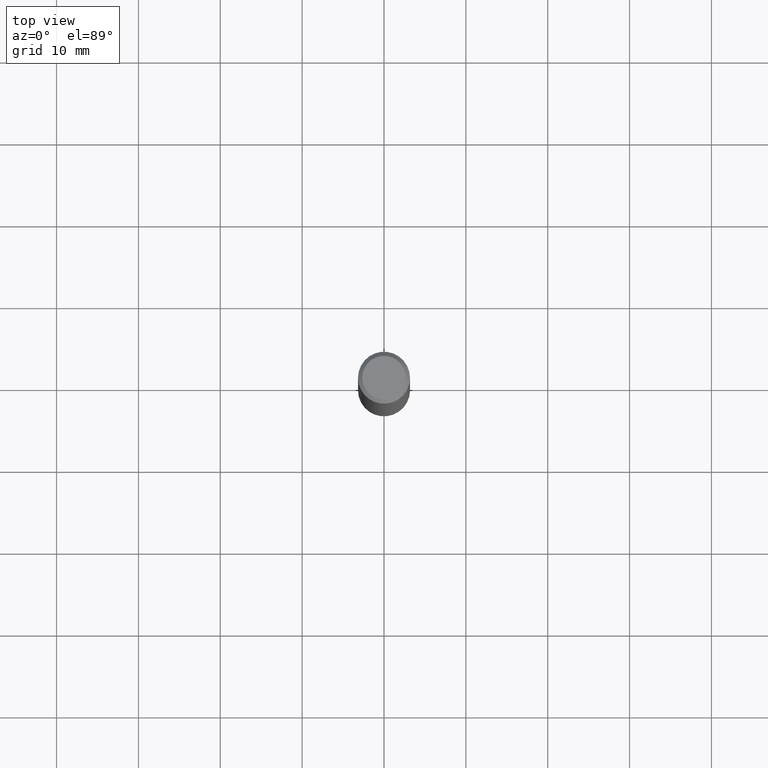
[diagram: clean part render]
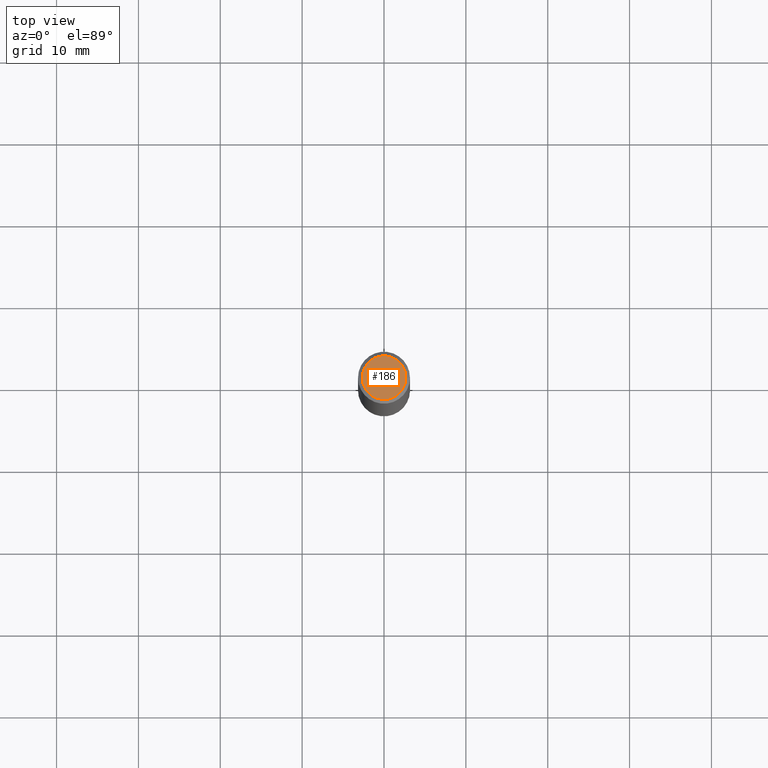
[diagram: same view with one face highlighted and labeled with its STEP entity id]
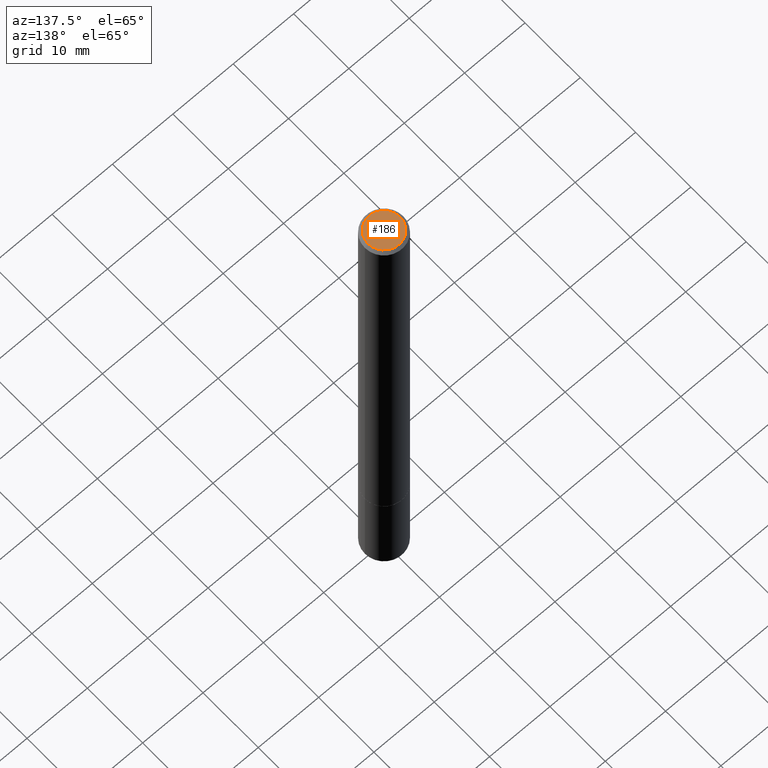
[diagram: same view with one face highlighted and labeled with its STEP entity id]
A machine part, top view. The second image highlights one B-rep face of the part: STEP entity #186.
A second angle (auxiliary view) of the same face is appended — the face is thin or edge-on in the first view.
In plain terms, the highlighted planar face has unit normal (0, -0, -1).
Its self-contained STEP definition (entity closure, byte-faithful):
#15 = EDGE_CURVE ( 'NONE', #198, #289, #214, .T. ) ;
#23 = PLANE ( 'NONE',  #83 ) ;
#74 = DIRECTION ( 'NONE',  ( 2.438088387897960049E-29, -3.491481338843145188E-15, -1.000000000000000000 ) ) ;
#83 = AXIS2_PLACEMENT_3D ( 'NONE', #101, #74, #160 ) ;
#101 = CARTESIAN_POINT ( 'NONE',  ( 7.332110811570558550E-16, 0.1049999999999997047, -3.900823592740815069E-16 ) ) ;
#103 = CARTESIAN_POINT ( 'NONE',  ( -0.1049999999999997047, 7.681258945454869124E-16, -4.695363739110977184E-17 ) ) ;
#118 = CARTESIAN_POINT ( 'NONE',  ( 1.148236555768741665E-45, -1.639377487418492057E-31, -4.695363739110452099E-17 ) ) ;
#119 = DIRECTION ( 'NONE',  ( 1.000000000000000000, -6.982962677686265922E-15, 4.874400871621252228E-29 ) ) ;
#122 = AXIS2_PLACEMENT_3D ( 'NONE', #118, #152, #262 ) ;
#144 = DIRECTION ( 'NONE',  ( -2.445468806185136597E-29, 3.491481338843145583E-15, 1.000000000000000000 ) ) ;
#152 = DIRECTION ( 'NONE',  ( -2.445468806185136597E-29, 3.491481338843145583E-15, 1.000000000000000000 ) ) ;
#160 = DIRECTION ( 'NONE',  ( -1.000000000000000000, 6.982962677686265922E-15, -4.876176775795935793E-29 ) ) ;
#178 = CIRCLE ( 'NONE', #264, 0.1049999999999997047 ) ;
#180 = EDGE_LOOP ( 'NONE', ( #353, #291 ) ) ;
#186 = ADVANCED_FACE ( 'NONE', ( #278 ), #23, .F. ) ;
#198 = VERTEX_POINT ( 'NONE', #103 ) ;
#214 = CIRCLE ( 'NONE', #122, 0.1049999999999997047 ) ;
#230 = CARTESIAN_POINT ( 'NONE',  ( 0.1049999999999997047, -8.238720831321555936E-16, -4.695363739109907908E-17 ) ) ;
#262 = DIRECTION ( 'NONE',  ( 1.000000000000000000, -6.982962677686265922E-15, 4.874400871621252228E-29 ) ) ;
#264 = AXIS2_PLACEMENT_3D ( 'NONE', #284, #144, #119 ) ;
#278 = FACE_OUTER_BOUND ( 'NONE', #180, .T. ) ;
#284 = CARTESIAN_POINT ( 'NONE',  ( 1.148236555768741665E-45, -1.639377487418492057E-31, -4.695363739110452099E-17 ) ) ;
#289 = VERTEX_POINT ( 'NONE', #230 ) ;
#291 = ORIENTED_EDGE ( 'NONE', *, *, #362, .T. ) ;
#353 = ORIENTED_EDGE ( 'NONE', *, *, #15, .T. ) ;
#362 = EDGE_CURVE ( 'NONE', #289, #198, #178, .T. ) ;